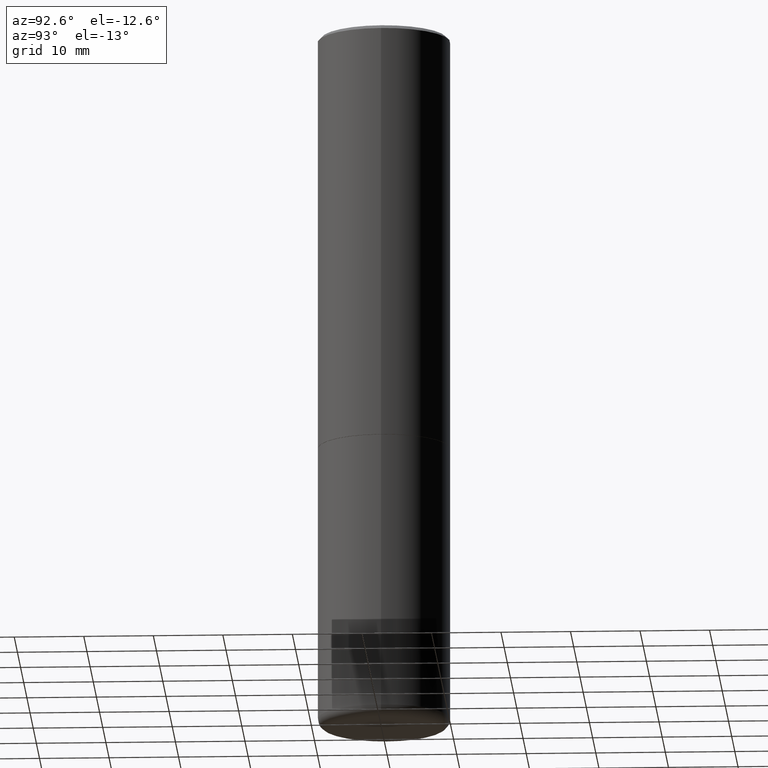
[diagram: clean part render]
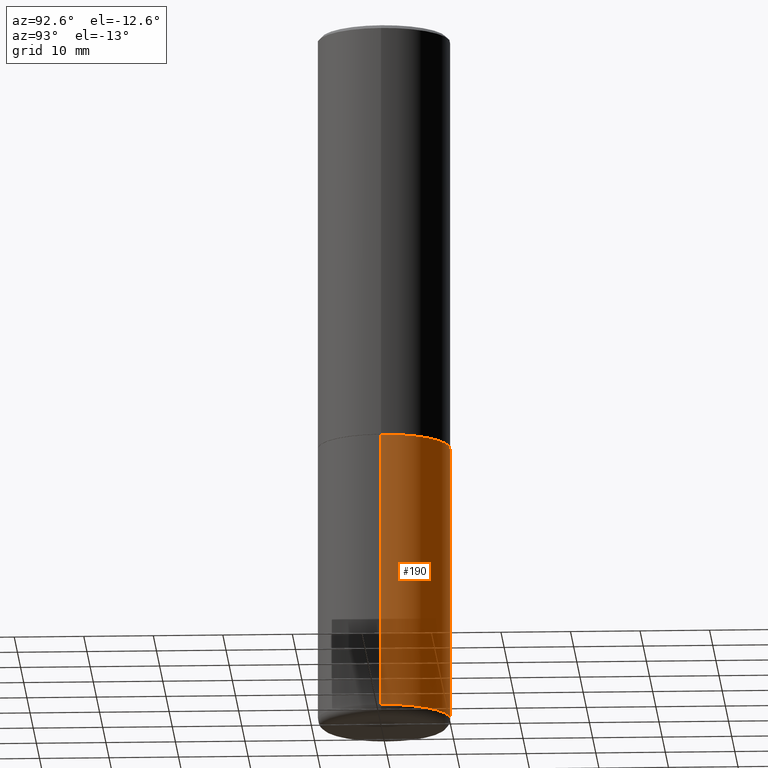
[diagram: same view with one face highlighted and labeled with its STEP entity id]
A machine part, auxiliary view. The second image highlights one B-rep face of the part: STEP entity #190.
In plain terms, the highlighted cylindrical surface (partial cylindrical patch) has radius 9.525 mm, axis along (-0, 0, 1).
Its self-contained STEP definition (entity closure, byte-faithful):
#3 = DIRECTION ( 'NONE',  ( 1.000000000000000000, -6.982962677686266711E-15, 4.876176775795935793E-29 ) ) ;
#34 = CARTESIAN_POINT ( 'NONE',  ( 0.3750000000000002220, -2.618611004132351594E-15, 1.828566290923477043E-29 ) ) ;
#39 = EDGE_LOOP ( 'NONE', ( #51, #429, #96, #188 ) ) ;
#42 = AXIS2_PLACEMENT_3D ( 'NONE', #368, #400, #329 ) ;
#44 = DIRECTION ( 'NONE',  ( -2.445468806185136597E-29, 3.491481338843145583E-15, 1.000000000000000000 ) ) ;
#51 = ORIENTED_EDGE ( 'NONE', *, *, #278, .T. ) ;
#65 = AXIS2_PLACEMENT_3D ( 'NONE', #316, #174, #3 ) ;
#78 = CIRCLE ( 'NONE', #166, 0.3750000000000003886 ) ;
#79 = CARTESIAN_POINT ( 'NONE',  ( -0.3750000000000000555, -8.359817068296855580E-15, -2.375000000000000000 ) ) ;
#96 = ORIENTED_EDGE ( 'NONE', *, *, #416, .F. ) ;
#98 = VERTEX_POINT ( 'NONE', #388 ) ;
#110 = CARTESIAN_POINT ( 'NONE',  ( 0.3750000000000003886, -1.637504747917434719E-14, -3.939999999999999947 ) ) ;
#113 = CARTESIAN_POINT ( 'NONE',  ( -0.3750000000000002220, 2.664535259100377275E-15, -1.844600658845590719E-29 ) ) ;
#121 = VERTEX_POINT ( 'NONE', #79 ) ;
#136 = FACE_OUTER_BOUND ( 'NONE', #39, .T. ) ;
#144 = LINE ( 'NONE', #113, #431 ) ;
#166 = AXIS2_PLACEMENT_3D ( 'NONE', #357, #44, #325 ) ;
#167 = VERTEX_POINT ( 'NONE', #210 ) ;
#173 = CIRCLE ( 'NONE', #42, 0.3750000000000000555 ) ;
#174 = DIRECTION ( 'NONE',  ( -2.445468806185136597E-29, 3.491481338843145583E-15, 1.000000000000000000 ) ) ;
#175 = DIRECTION ( 'NONE',  ( -2.445468806185136877E-29, 3.491481338843145188E-15, 1.000000000000000000 ) ) ;
#188 = ORIENTED_EDGE ( 'NONE', *, *, #374, .F. ) ;
#190 = ADVANCED_FACE ( 'NONE', ( #136 ), #243, .T. ) ;
#207 = VECTOR ( 'NONE', #175, 39.37007874015748143 ) ;
#210 = CARTESIAN_POINT ( 'NONE',  ( -0.3750000000000003886, -1.109190121594161516E-14, -3.939999999999999947 ) ) ;
#211 = LINE ( 'NONE', #34, #207 ) ;
#243 = CYLINDRICAL_SURFACE ( 'NONE', #65, 0.3750000000000002220 ) ;
#265 = EDGE_CURVE ( 'NONE', #167, #121, #144, .T. ) ;
#278 = EDGE_CURVE ( 'NONE', #327, #167, #78, .T. ) ;
#316 = CARTESIAN_POINT ( 'NONE',  ( 0.000000000000000000, 0.000000000000000000, 0.000000000000000000 ) ) ;
#325 = DIRECTION ( 'NONE',  ( 1.000000000000000000, -6.982962677686265922E-15, 0.000000000000000000 ) ) ;
#327 = VERTEX_POINT ( 'NONE', #110 ) ;
#329 = DIRECTION ( 'NONE',  ( 1.000000000000000000, -6.982962677686266711E-15, 0.000000000000000000 ) ) ;
#357 = CARTESIAN_POINT ( 'NONE',  ( 9.635147096369438236E-29, -1.375643647504199401E-14, -3.939999999999999947 ) ) ;
#368 = CARTESIAN_POINT ( 'NONE',  ( 5.807988414689699417E-29, -8.292268179752470118E-15, -2.375000000000000000 ) ) ;
#374 = EDGE_CURVE ( 'NONE', #327, #98, #211, .T. ) ;
#388 = CARTESIAN_POINT ( 'NONE',  ( 0.3750000000000000555, -1.091087918388482013E-14, -2.375000000000000000 ) ) ;
#400 = DIRECTION ( 'NONE',  ( -2.445468806185136597E-29, 3.491481338843145583E-15, 1.000000000000000000 ) ) ;
#416 = EDGE_CURVE ( 'NONE', #98, #121, #173, .T. ) ;
#418 = DIRECTION ( 'NONE',  ( -2.445468806185136877E-29, 3.491481338843145188E-15, 1.000000000000000000 ) ) ;
#429 = ORIENTED_EDGE ( 'NONE', *, *, #265, .T. ) ;
#431 = VECTOR ( 'NONE', #418, 39.37007874015748143 ) ;